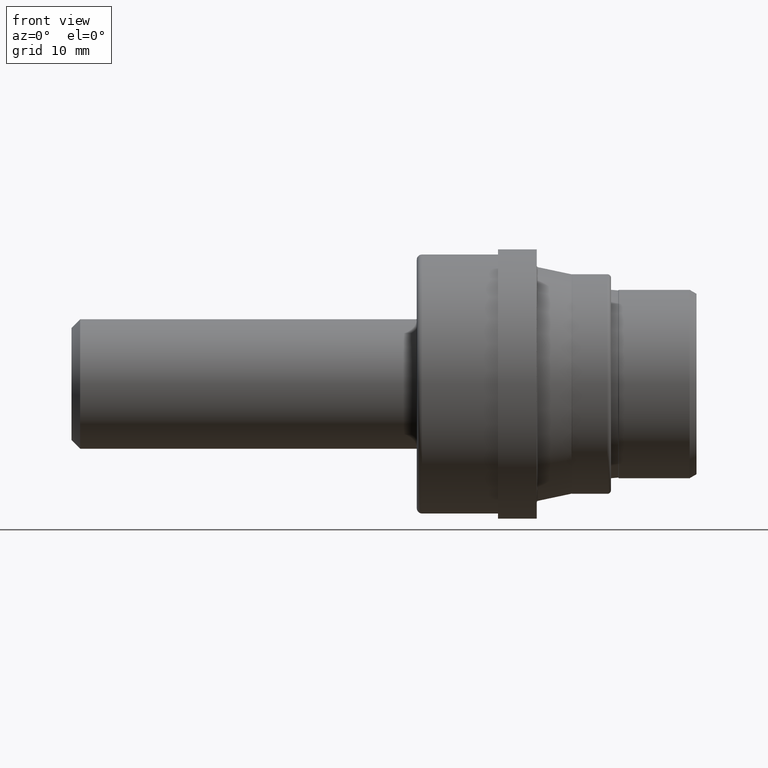
[diagram: clean part render]
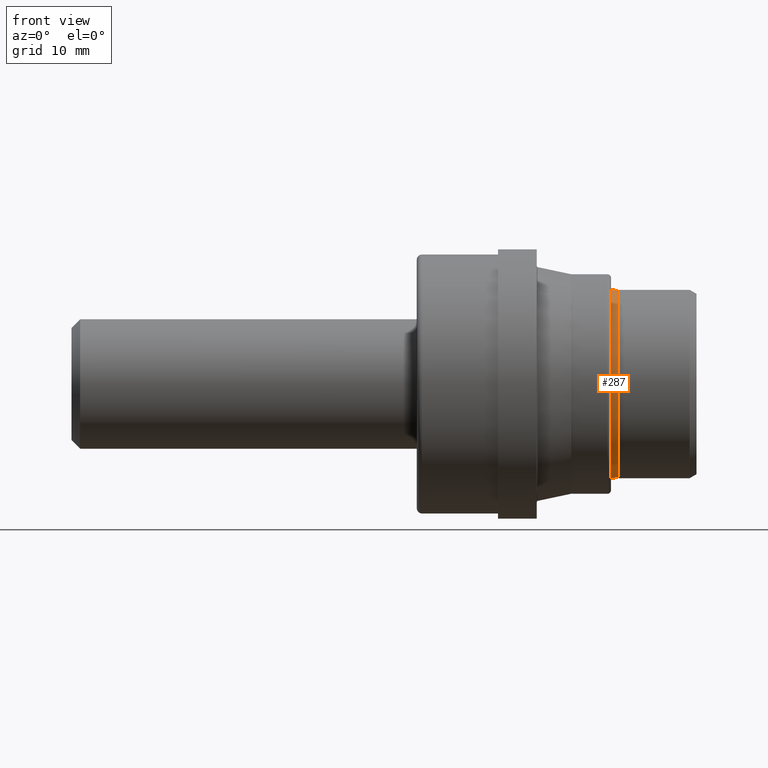
[diagram: same view with one face highlighted and labeled with its STEP entity id]
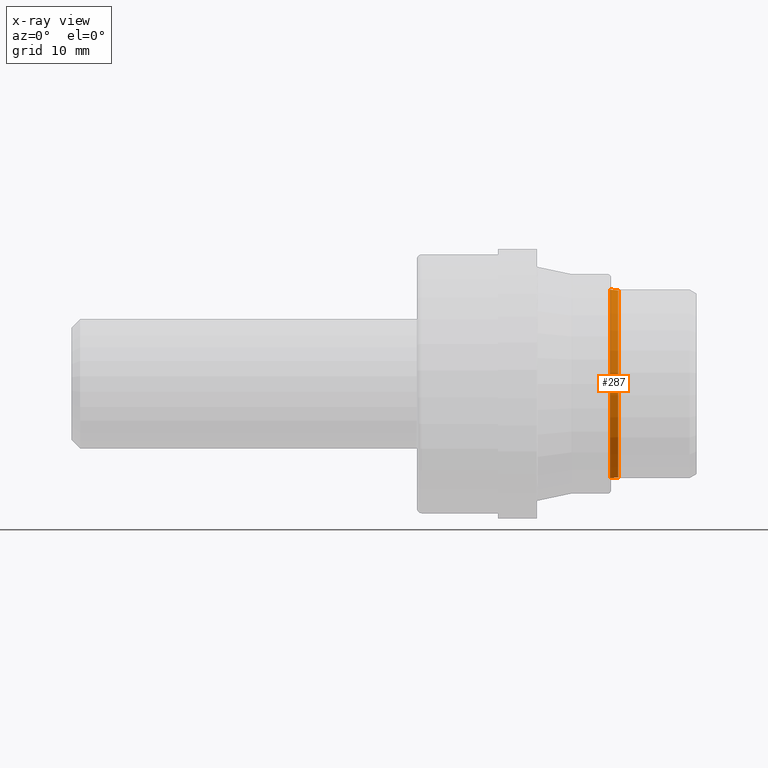
[diagram: x-ray of the same camera — body ghosted, the highlighted face saturated]
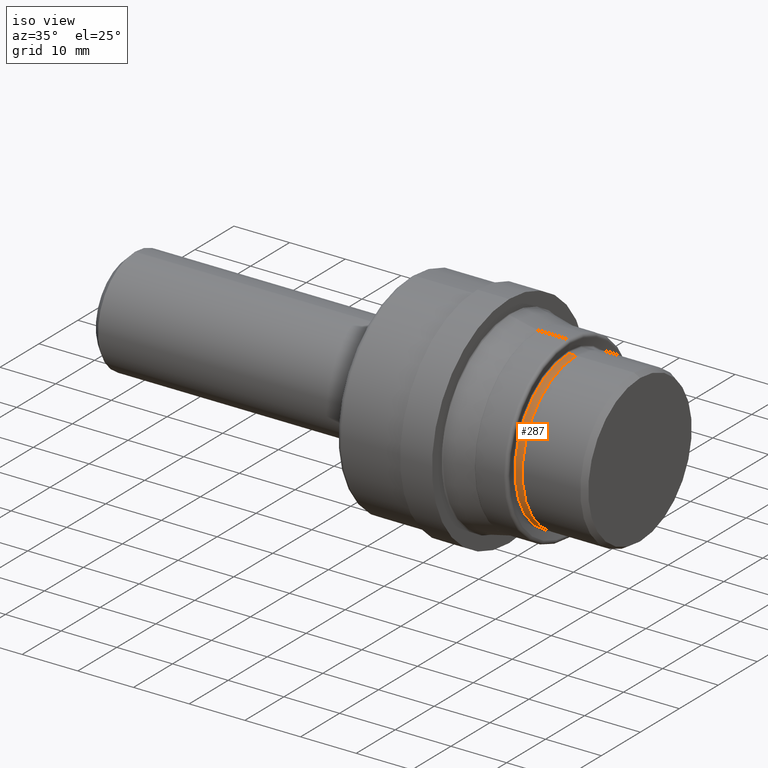
[diagram: same view with one face highlighted and labeled with its STEP entity id]
A machine part, front view. The second image highlights one B-rep face of the part: STEP entity #287.
The next image is the same camera in x-ray: the body ghosted, the highlighted face saturated — about 0% of this face is hidden behind the body in this view.
A second angle (iso view) of the same face is appended — the face is thin or edge-on in the first view.
In plain terms, the highlighted conical surface has half-angle 5 deg.
Its self-contained STEP definition (entity closure, byte-faithful):
#16 = ORIENTED_EDGE ( 'NONE', *, *, #673, .T. ) ;
#24 = AXIS2_PLACEMENT_3D ( 'NONE', #466, #962, #381 ) ;
#85 = AXIS2_PLACEMENT_3D ( 'NONE', #666, #107, #274 ) ;
#97 = AXIS2_PLACEMENT_3D ( 'NONE', #513, #286, #516 ) ;
#107 = DIRECTION ( 'NONE',  ( -1.000000000000000000, 0.0000000000000000000, 0.0000000000000000000 ) ) ;
#156 = CARTESIAN_POINT ( 'NONE',  ( 3.166772432714541896, 6.658598698234532847E-17, 0.5419316909774325453 ) ) ;
#206 = CIRCLE ( 'NONE', #97, 0.5460999999999996968 ) ;
#268 = VECTOR ( 'NONE', #908, 39.37007874015748143 ) ;
#274 = DIRECTION ( 'NONE',  ( 0.0000000000000000000, 0.0000000000000000000, 1.000000000000000000 ) ) ;
#286 = DIRECTION ( 'NONE',  ( 1.000000000000000000, -0.0000000000000000000, -0.0000000000000000000 ) ) ;
#287 = ADVANCED_FACE ( 'NONE', ( #554 ), #719, .T. ) ;
#289 = CIRCLE ( 'NONE', #24, 0.5419316909774325453 ) ;
#294 = VERTEX_POINT ( 'NONE', #912 ) ;
#347 = EDGE_CURVE ( 'NONE', #923, #294, #692, .T. ) ;
#362 = CARTESIAN_POINT ( 'NONE',  ( 3.166772432714541896, 0.0000000000000000000, -0.5419316909774325453 ) ) ;
#381 = DIRECTION ( 'NONE',  ( 0.0000000000000000000, 0.0000000000000000000, -1.000000000000000000 ) ) ;
#441 = CARTESIAN_POINT ( 'NONE',  ( 3.166772432714541896, 0.0000000000000000000, 0.5419316909774325453 ) ) ;
#466 = CARTESIAN_POINT ( 'NONE',  ( 3.166772432714541896, 0.0000000000000000000, 0.0000000000000000000 ) ) ;
#513 = CARTESIAN_POINT ( 'NONE',  ( 3.119128442572523419, 0.0000000000000000000, 0.0000000000000000000 ) ) ;
#516 = DIRECTION ( 'NONE',  ( 0.0000000000000000000, 0.0000000000000000000, -1.000000000000000000 ) ) ;
#553 = VECTOR ( 'NONE', #1020, 39.37007874015748143 ) ;
#554 = FACE_OUTER_BOUND ( 'NONE', #1026, .T. ) ;
#573 = LINE ( 'NONE', #441, #553 ) ;
#666 = CARTESIAN_POINT ( 'NONE',  ( 3.166772432714541896, 0.0000000000000000000, 0.0000000000000000000 ) ) ;
#673 = EDGE_CURVE ( 'NONE', #888, #294, #206, .T. ) ;
#692 = LINE ( 'NONE', #996, #268 ) ;
#703 = ORIENTED_EDGE ( 'NONE', *, *, #894, .F. ) ;
#716 = CARTESIAN_POINT ( 'NONE',  ( 3.119128442572523419, 0.0000000000000000000, 0.5460999999999996968 ) ) ;
#719 = CONICAL_SURFACE ( 'NONE', #85, 0.5419316909774325453, 0.08726646259970964603 ) ;
#780 = EDGE_CURVE ( 'NONE', #926, #888, #573, .T. ) ;
#888 = VERTEX_POINT ( 'NONE', #716 ) ;
#889 = ORIENTED_EDGE ( 'NONE', *, *, #347, .F. ) ;
#894 = EDGE_CURVE ( 'NONE', #926, #923, #289, .T. ) ;
#908 = DIRECTION ( 'NONE',  ( -0.9961946980917462113, 1.067350013832213852E-17, -0.08715574274765136575 ) ) ;
#912 = CARTESIAN_POINT ( 'NONE',  ( 3.119128442572523419, 6.687796170143691779E-17, -0.5460999999999996968 ) ) ;
#923 = VERTEX_POINT ( 'NONE', #362 ) ;
#926 = VERTEX_POINT ( 'NONE', #156 ) ;
#962 = DIRECTION ( 'NONE',  ( 1.000000000000000000, -0.0000000000000000000, -0.0000000000000000000 ) ) ;
#996 = CARTESIAN_POINT ( 'NONE',  ( 3.166772432714541896, 6.636749107120253334E-17, -0.5419316909774325453 ) ) ;
#1004 = ORIENTED_EDGE ( 'NONE', *, *, #780, .T. ) ;
#1020 = DIRECTION ( 'NONE',  ( -0.9961946980917462113, 0.0000000000000000000, 0.08715574274765136575 ) ) ;
#1026 = EDGE_LOOP ( 'NONE', ( #889, #703, #1004, #16 ) ) ;